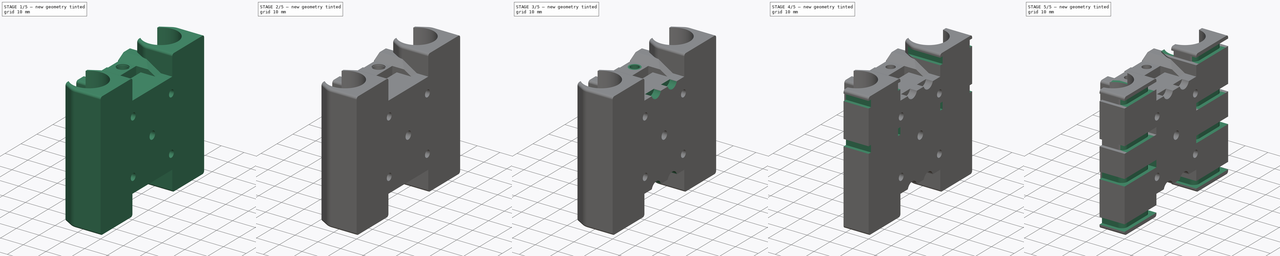
[diagram: build sequence overview — one tinted view per stage of 5, left to right]
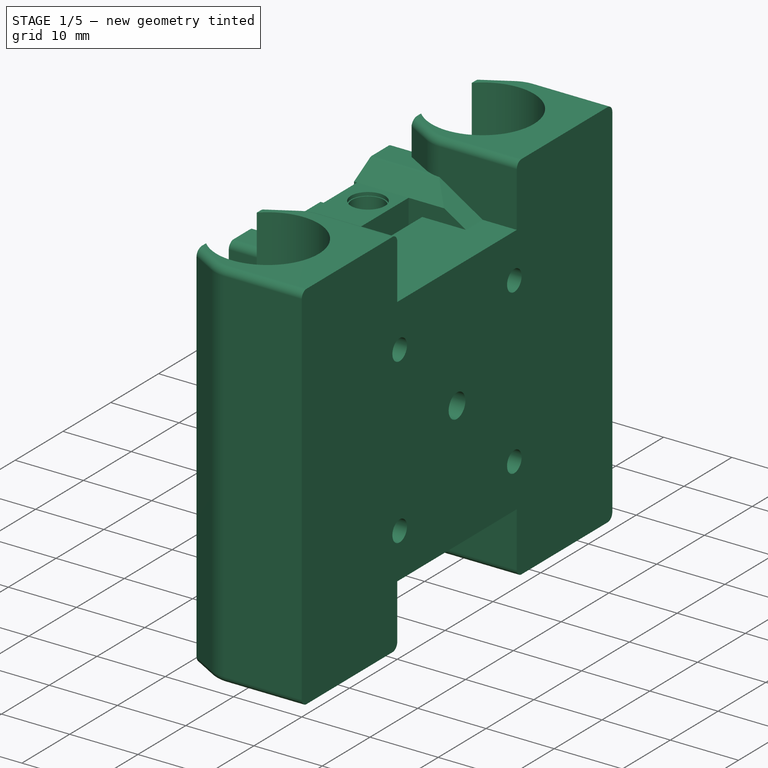
[diagram: stage 1 of 5 — iso view after this stage's code; geometry added in this stage tinted green]
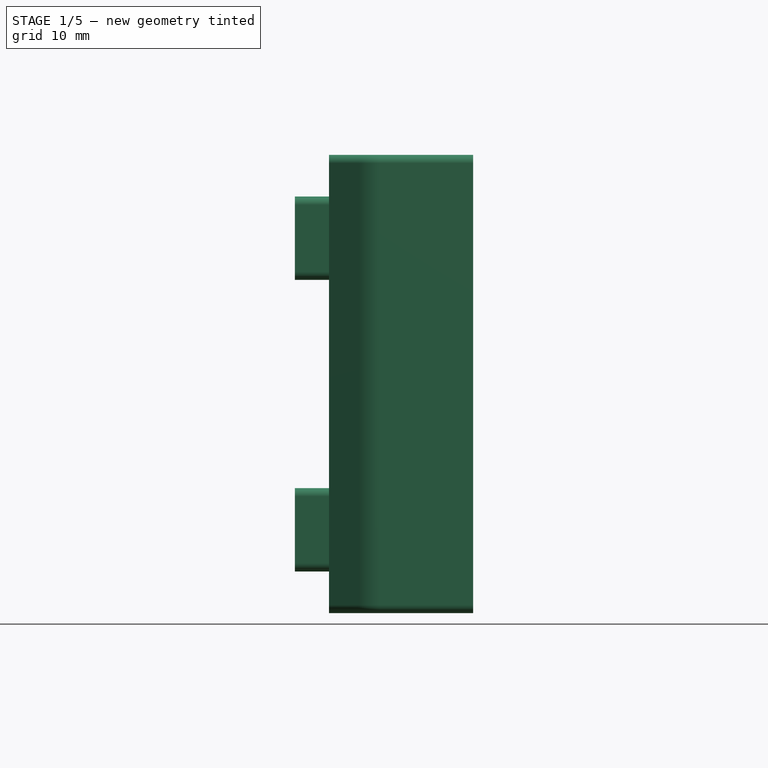
[diagram: stage 1 of 5 — front view after this stage's code; geometry added in this stage tinted green]
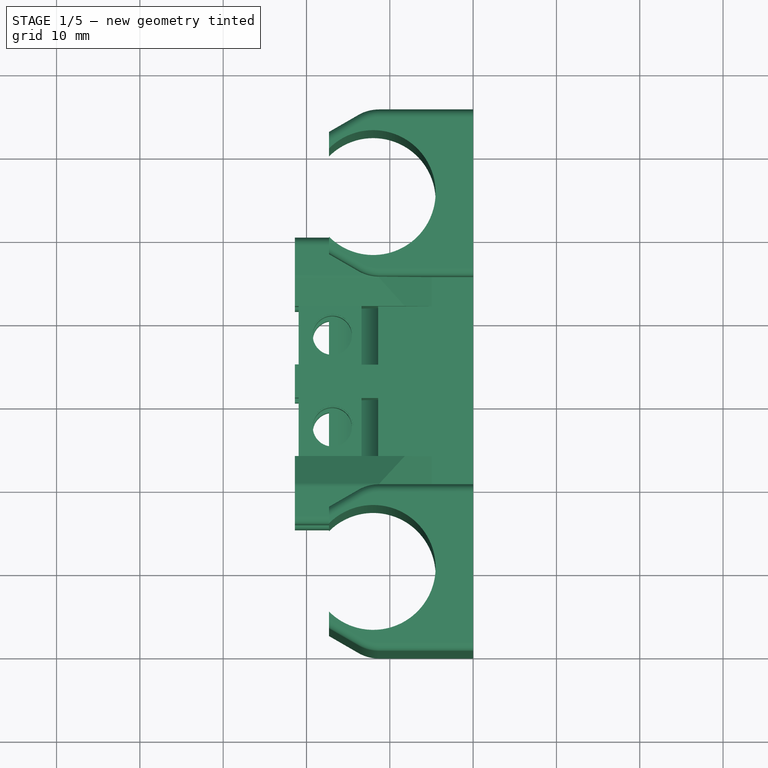
[diagram: stage 1 of 5 — top view after this stage's code; geometry added in this stage tinted green]
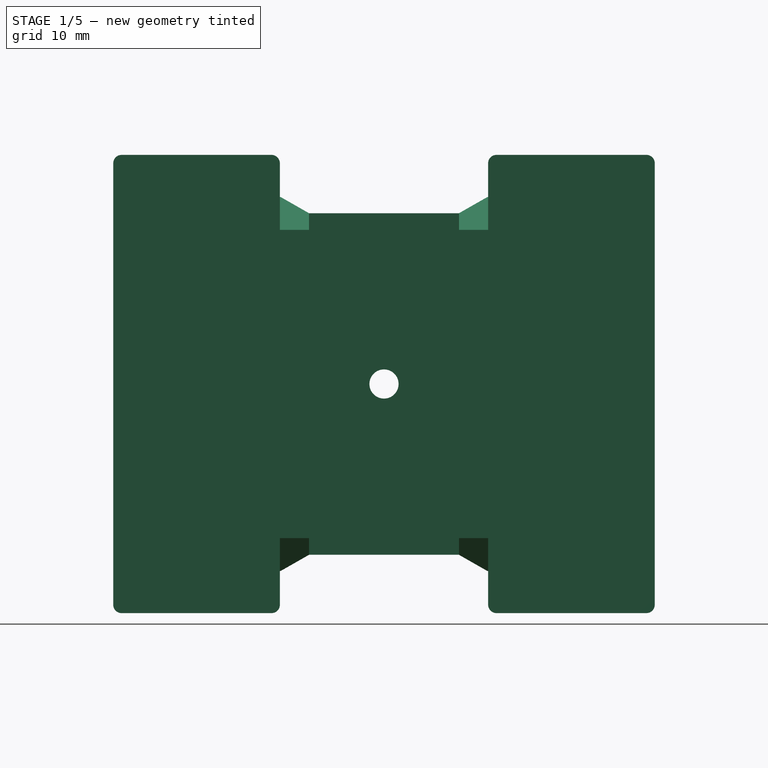
[diagram: stage 1 of 5 — right view after this stage's code; geometry added in this stage tinted green]
FCSTD DOCUMENT  (FreeCAD 0.17R13519 (Git))
Label: Corelia_0_X_carriage
License: All rights reserved
LicenseURL: http://en.wikipedia.org/wiki/All_rights_reserved
objects: Sketcher::SketchObject×21, PartDesign::Pocket×11, PartDesign::Pad×10, PartDesign::LinearPattern×2, Part::Feature×1, PartDesign::FeatureBase×1, PartDesign::Fillet×1, PartDesign::Body×1
note: 69 computed .brp shape members not serialized (recipe doc carries the construction recipe); baked Part::Feature solids carry a one-line shape summary decoded from their .brp

FEATURE [Part::Feature] Part__Feature  label="X Carriage"
  shape: bbox 21.4 x 65.82 x 55 mm, 269 faces (baked)
FEATURE [PartDesign::FeatureBase] BaseFeature
  BaseFeature = -> Part__Feature
FEATURE [Sketcher::SketchObject] Sketch
  ExternalGeometry = -> [BaseFeature]
  MapMode = 5
  Placement = pos=(-21.4,0,0) rot=(-0.57735,0.57735,0.57735;4.18879rad)
  Support = -> [BaseFeature]
  sketch-geometry (2):
    g0: Circle CenterX=-45 CenterY=45 CenterZ=0 NormalX=0 NormalY=0 NormalZ=1 AngleXU=0 Radius=2.5
    g1: Circle CenterX=-45 CenterY=45 CenterZ=0 NormalX=0 NormalY=0 NormalZ=1 AngleXU=0 Radius=1.85
  constraints (4):
    c: Coincident(g0,g-3)
    c: Coincident(g1,g0)
    c: Radius(g1) = 1.85
    c: Radius(g0) = 2.5
FEATURE [PartDesign::Pad] Pad
  BaseFeature = -> BaseFeature
  Length = 10
  Length2 = 100
  Profile = -> Sketch
  Type = 3
  UpToFace = -> BaseFeature [Face256]
FEATURE [Sketcher::SketchObject] Sketch001
  ExternalGeometry = -> [Pad]
  MapMode = 5
  Placement = pos=(-19.9,0,0) rot=(-0.57735,0.57735,0.57735;4.18879rad)
  Support = -> [Pad]
  sketch-geometry (2):
    g0: Circle CenterX=-32.5 CenterY=45 CenterZ=0 NormalX=0 NormalY=0 NormalZ=1 AngleXU=0 Radius=2.5
    g1: Circle CenterX=-32.5 CenterY=45 CenterZ=0 NormalX=0 NormalY=0 NormalZ=1 AngleXU=0 Radius=1.85
  constraints (4):
    c: Coincident(g0,g-3)
    c: Coincident(g1,g0)
    c: Radius(g0) = 2.5
    c: Radius(g1) = 1.85
FEATURE [PartDesign::Pad] Pad001
  BaseFeature = -> Pad
  Length = 10
  Length2 = 100
  Profile = -> Sketch001
  Type = 3
  UpToFace = -> Pad [Face259]
FEATURE [Sketcher::SketchObject] Sketch002
  ExternalGeometry = -> [Pad001]
  MapMode = 5
  Placement = pos=(-21.4,0,0) rot=(-0.57735,0.57735,0.57735;4.18879rad)
  Support = -> [Pad001]
  sketch-geometry (2):
    g0: Circle CenterX=-20 CenterY=45 CenterZ=0 NormalX=0 NormalY=0 NormalZ=1 AngleXU=0 Radius=1.85
    g1: Circle CenterX=-20 CenterY=45 CenterZ=0 NormalX=0 NormalY=0 NormalZ=1 AngleXU=0 Radius=2.5
  constraints (4):
    c: Coincident(g0,g-3)
    c: Coincident(g1,g0)
    c: Radius(g0) = 1.85
    c: Radius(g1) = 2.5
FEATURE [PartDesign::Pad] Pad002
  BaseFeature = -> Pad001
  Length = 10
  Length2 = 100
  Profile = -> Sketch002
  Type = 3
  UpToFace = -> Pad001 [Face258]
FEATURE [Sketcher::SketchObject] Sketch003
  ExternalGeometry = -> [Pad002]
  MapMode = 5
  Placement = pos=(-21.4,0,0) rot=(-0.57735,0.57735,0.57735;4.18879rad)
  Support = -> [Pad002]
  sketch-geometry (2):
    g0: Circle CenterX=-45 CenterY=10 CenterZ=0 NormalX=0 NormalY=0 NormalZ=1 AngleXU=0 Radius=2.5
    g1: Circle CenterX=-45 CenterY=10 CenterZ=0 NormalX=0 NormalY=0 NormalZ=1 AngleXU=0 Radius=1.85
  constraints (4):
    c: Coincident(g0,g-3)
    c: Coincident(g1,g0)
    c: Radius(g1) = 1.85
    c: Radius(g0) = 2.5
FEATURE [PartDesign::Pad] Pad003
  BaseFeature = -> Pad002
  Length = 10
  Length2 = 100
  Profile = -> Sketch003
  Type = 3
  UpToFace = -> Pad002 [Face234]
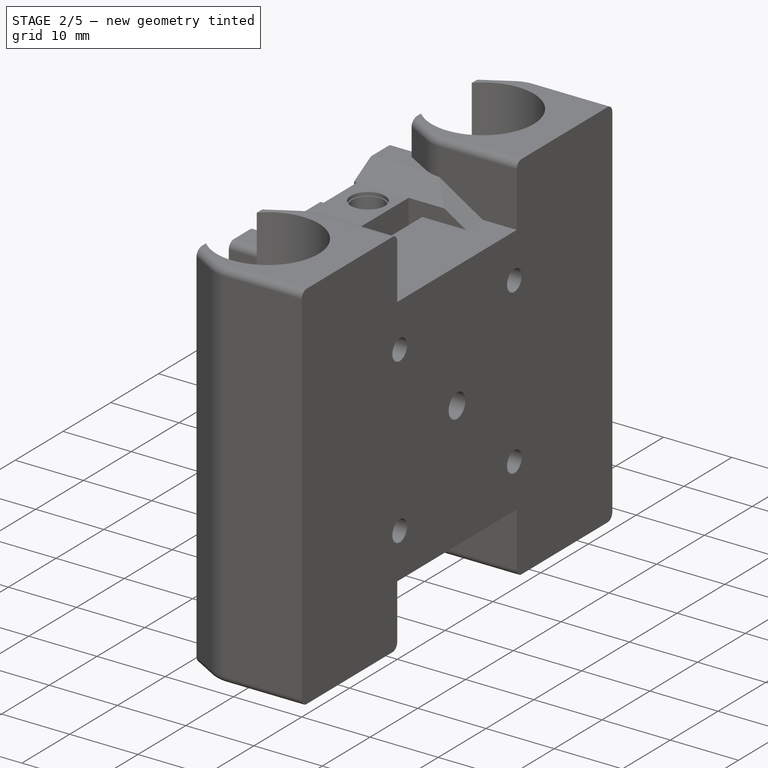
[diagram: stage 2 of 5 — iso view after this stage's code; geometry added in this stage tinted green]
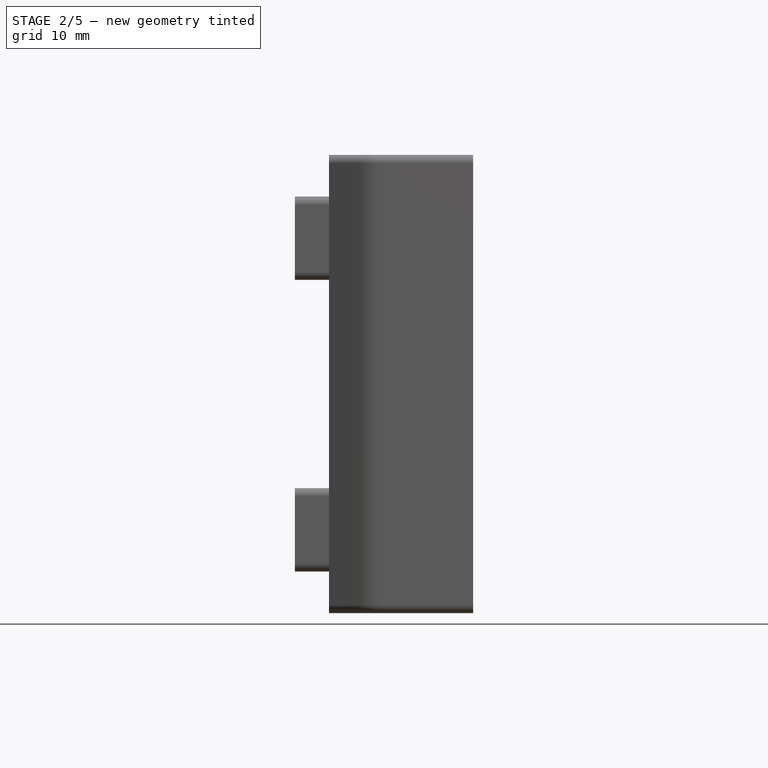
[diagram: stage 2 of 5 — front view after this stage's code; geometry added in this stage tinted green]
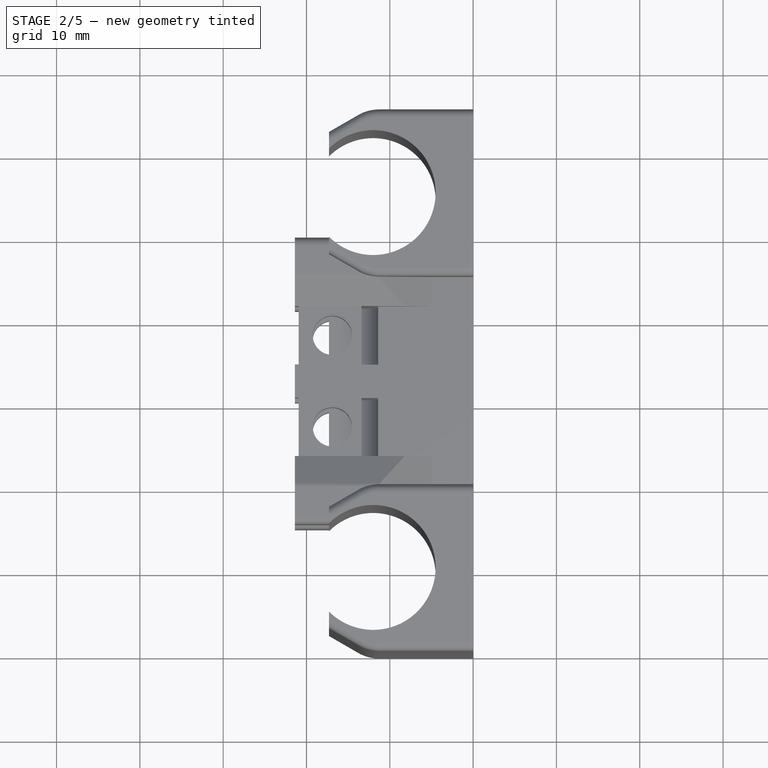
[diagram: stage 2 of 5 — top view after this stage's code; geometry added in this stage tinted green]
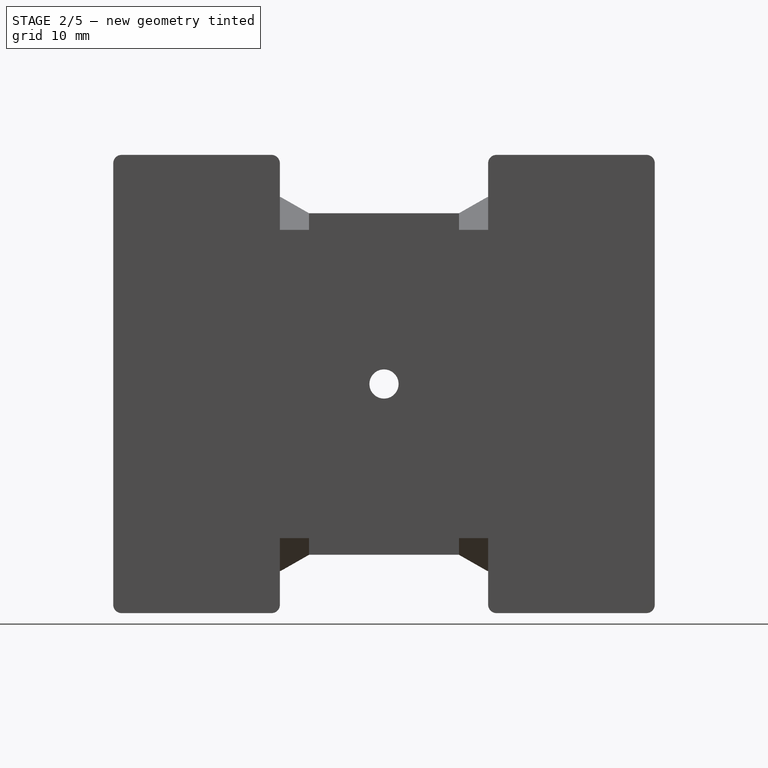
[diagram: stage 2 of 5 — right view after this stage's code; geometry added in this stage tinted green]
FEATURE [Sketcher::SketchObject] Sketch004
  ExternalGeometry = -> [Pad003]
  MapMode = 5
  Placement = pos=(-19.9,0,0) rot=(-0.57735,0.57735,0.57735;4.18879rad)
  Support = -> [Pad003]
  sketch-geometry (2):
    g0: Circle CenterX=-32.5 CenterY=10 CenterZ=0 NormalX=0 NormalY=0 NormalZ=1 AngleXU=0 Radius=1.85
    g1: Circle CenterX=-32.5 CenterY=10 CenterZ=0 NormalX=0 NormalY=0 NormalZ=1 AngleXU=0 Radius=2.35
  constraints (4):
    c: Coincident(g0,g-3)
    c: Coincident(g1,g0)
    c: Radius(g0) = 1.85
    c: Radius(g1) = 2.35
FEATURE [PartDesign::Pad] Pad004
  BaseFeature = -> Pad003
  Length = 10
  Length2 = 100
  Profile = -> Sketch004
  Type = 3
  UpToFace = -> Pad003 [Face250]
FEATURE [Sketcher::SketchObject] Sketch006
  ExternalGeometry = -> [Pad004]
  MapMode = 5
  Placement = pos=(-21.4,0,0) rot=(-0.57735,0.57735,0.57735;4.18879rad)
  Support = -> [Pad004]
  sketch-geometry (2):
    g0: Circle CenterX=-20 CenterY=10 CenterZ=0 NormalX=0 NormalY=0 NormalZ=1 AngleXU=0 Radius=1.85
    g1: Circle CenterX=-20 CenterY=10 CenterZ=0 NormalX=0 NormalY=0 NormalZ=1 AngleXU=0 Radius=2.5
  constraints (4):
    c: Coincident(g0,g-3)
    c: Coincident(g1,g0)
    c: Radius(g0) = 1.85
    c: Radius(g1) = 2.5
FEATURE [PartDesign::Pad] Pad005
  BaseFeature = -> Pad004
  Length = 10
  Length2 = 100
  Profile = -> Sketch006
  Type = 3
  UpToFace = -> Pad004 [Face256]
FEATURE [Sketcher::SketchObject] Sketch007
  ExternalGeometry = -> [Pad005]
  MapMode = 5
  Placement = pos=(-21.4,0,0) rot=(0.57735,-0.57735,-0.57735;2.0944rad)
  Support = -> [Pad005]
  sketch-geometry (1):
    g0: Circle CenterX=-45 CenterY=45 CenterZ=0 NormalX=0 NormalY=0 NormalZ=1 AngleXU=0 Radius=2
  constraints (2):
    c: Coincident(g0,g-3)
    c: Radius(g0) = 2
FEATURE [PartDesign::Pocket] Pocket
  BaseFeature = -> Pad005
  Length = 0.5
  Length2 = 100
  Profile = -> Sketch007
  Type = 0
FEATURE [Sketcher::SketchObject] Sketch008
  ExternalGeometry = -> [Pocket]
  MapMode = 5
  Placement = pos=(-21.4,0,0) rot=(-0.57735,0.57735,0.57735;4.18879rad)
  Support = -> [Pocket]
  sketch-geometry (1):
    g0: Circle CenterX=-20 CenterY=45 CenterZ=0 NormalX=0 NormalY=0 NormalZ=1 AngleXU=0 Radius=2
  constraints (2):
    c: Coincident(g0,g-3)
    c: Radius(g0) = 2
FEATURE [PartDesign::Pocket] Pocket001
  BaseFeature = -> Pocket
  Length = 0.5
  Length2 = 100
  Profile = -> Sketch008
  Type = 0
FEATURE [Sketcher::SketchObject] Sketch009
  ExternalGeometry = -> [Pocket001]
  MapMode = 5
  Placement = pos=(-21.4,0,0) rot=(0.57735,-0.57735,-0.57735;2.0944rad)
  Support = -> [Pocket001]
  sketch-geometry (1):
    g0: Circle CenterX=-45 CenterY=10 CenterZ=0 NormalX=0 NormalY=0 NormalZ=1 AngleXU=0 Radius=2
  constraints (2):
    c: Coincident(g0,g-3)
    c: Radius(g0) = 2
FEATURE [PartDesign::Pocket] Pocket002
  BaseFeature = -> Pocket001
  Length = 0.5
  Length2 = 100
  Profile = -> Sketch009
  Type = 0
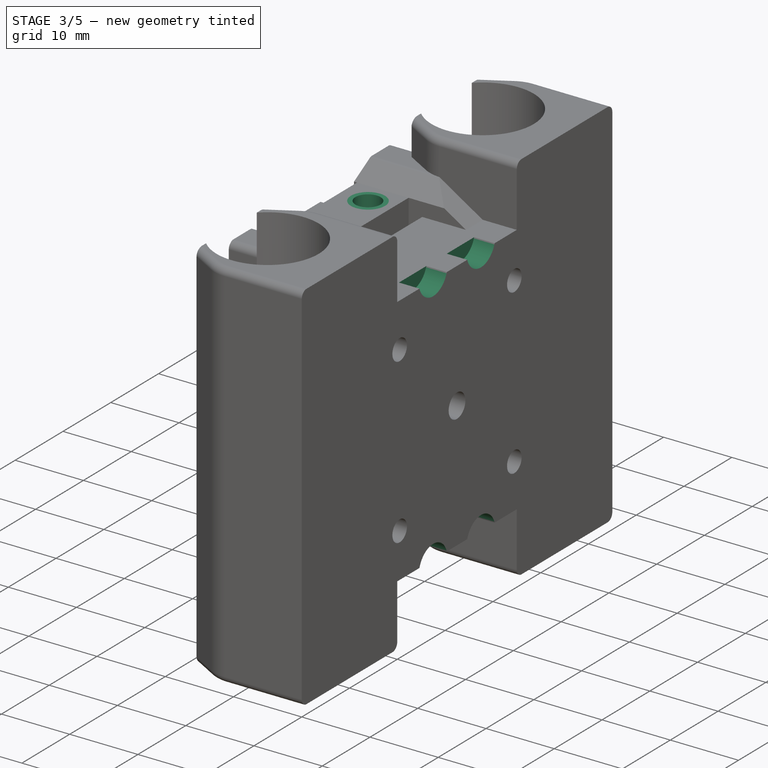
[diagram: stage 3 of 5 — iso view after this stage's code; geometry added in this stage tinted green]
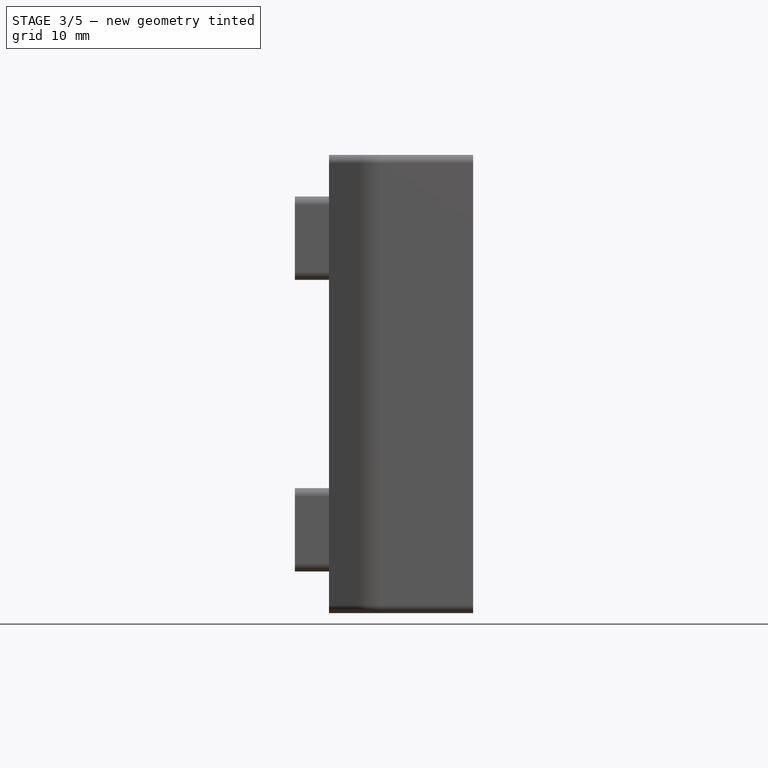
[diagram: stage 3 of 5 — front view after this stage's code; geometry added in this stage tinted green]
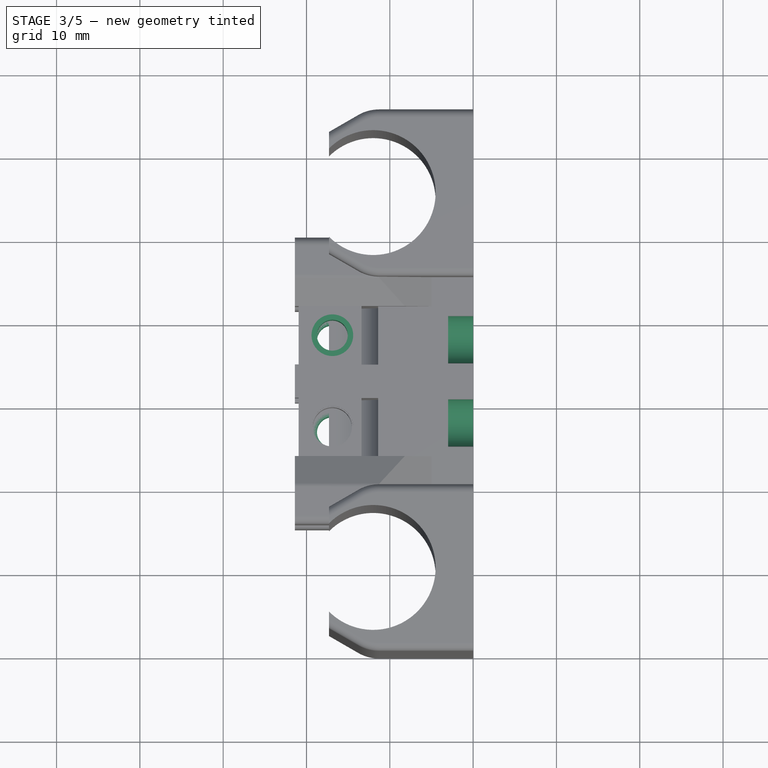
[diagram: stage 3 of 5 — top view after this stage's code; geometry added in this stage tinted green]
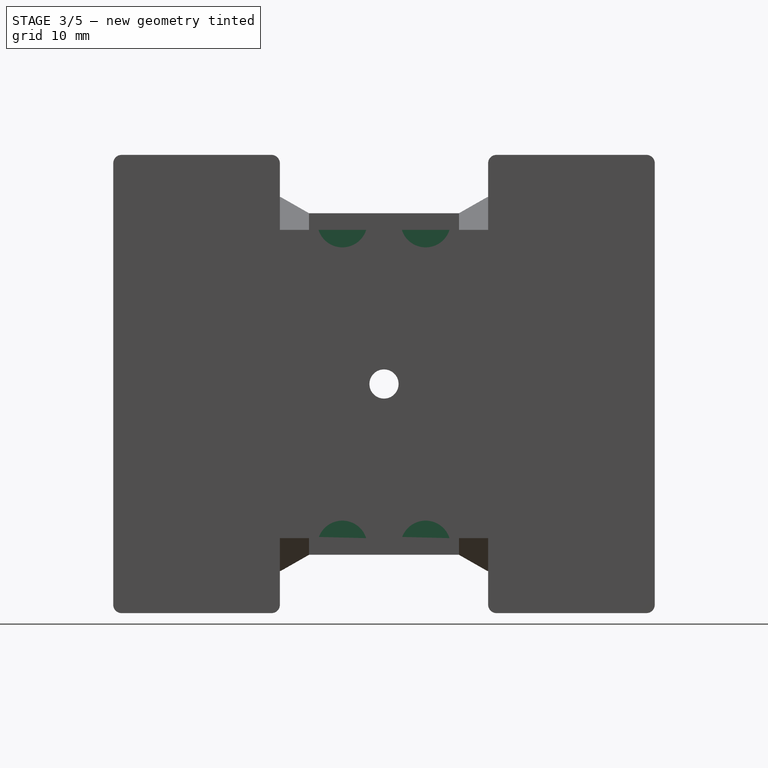
[diagram: stage 3 of 5 — right view after this stage's code; geometry added in this stage tinted green]
FEATURE [Sketcher::SketchObject] Sketch010
  ExternalGeometry = -> [Pocket002]
  MapMode = 5
  Placement = pos=(-21.4,0,0) rot=(-0.57735,0.57735,0.57735;4.18879rad)
  Support = -> [Pocket002]
  sketch-geometry (1):
    g0: Circle CenterX=-20 CenterY=10 CenterZ=0 NormalX=0 NormalY=0 NormalZ=1 AngleXU=0 Radius=2
  constraints (2):
    c: Coincident(g0,g-3)
    c: Radius(g0) = 2
FEATURE [PartDesign::Pocket] Pocket003
  BaseFeature = -> Pocket002
  Length = 0.5
  Length2 = 100
  Profile = -> Sketch010
  Type = 0
FEATURE [Sketcher::SketchObject] Sketch011
  MapMode = 5
  Placement = pos=(0,0,0) rot=(0.57735,0.57735,0.57735;2.0944rad)
  Support = -> [Pocket003]
  sketch-geometry (8):
    g0: LineSegment [constr] StartX=27.5 StartY=46.9 StartZ=0 EndX=37.5 EndY=46.9 EndZ=0
    g1: LineSegment [constr] StartX=37.5 StartY=46.9 StartZ=0 EndX=37.5 EndY=8.1 EndZ=0
    g2: LineSegment [constr] StartX=37.5 StartY=8.1 StartZ=0 EndX=27.5 EndY=8.1 EndZ=0
    g3: LineSegment [constr] StartX=27.5 StartY=8.1 StartZ=0 EndX=27.5 EndY=46.9 EndZ=0
    g4: Circle CenterX=27.5 CenterY=46.9 CenterZ=0 NormalX=0 NormalY=0 NormalZ=1 AngleXU=0 Radius=3
    g5: Circle CenterX=37.5 CenterY=46.9 CenterZ=0 NormalX=0 NormalY=0 NormalZ=1 AngleXU=0 Radius=3
    g6: Circle CenterX=27.5 CenterY=8.1 CenterZ=0 NormalX=0 NormalY=0 NormalZ=1 AngleXU=0 Radius=3
    g7: Circle CenterX=37.5 CenterY=8.1 CenterZ=0 NormalX=0 NormalY=0 NormalZ=1 AngleXU=0 Radius=3
  constraints (20):
    c: Coincident(g0,g1)
    c: Coincident(g1,g2)
    c: Coincident(g2,g3)
    c: Coincident(g3,g0)
    c: Horizontal(g0)
    c: Horizontal(g2)
    c: Vertical(g1)
    c: Vertical(g3)
    c: Coincident(g4,g0)
    c: Coincident(g5,g0)
    c: Coincident(g6,g2)
    c: Coincident(g7,g1)
    c: Equal(g6,g4)
    c: Equal(g4,g5)
    c: Equal(g5,g7)
    c: Radius(g4) = 3
    c: DistanceX(g2) = 27.5
    c: DistanceY(g2) = 8.1
    c: DistanceX(g2,g2) = 10
    c: DistanceY(g1,g1) = 38.8
FEATURE [PartDesign::Pocket] Pocket004
  BaseFeature = -> Pocket003
  Length = 3
  Length2 = 100
  Profile = -> Sketch011
  Type = 0
FEATURE [Sketcher::SketchObject] Sketch012
  ExternalGeometry = -> [Pocket004]
  MapMode = 5
  Placement = pos=(0,0,7) rot=(1,0,0;3.14159rad)
  Support = -> [Pocket004]
  sketch-geometry (2):
    g0: Circle CenterX=-16.9 CenterY=-27 CenterZ=0 NormalX=0 NormalY=0 NormalZ=1 AngleXU=0 Radius=2.5
    g1: Circle CenterX=-16.9 CenterY=-27 CenterZ=0 NormalX=0 NormalY=0 NormalZ=1 AngleXU=0 Radius=1.85
  constraints (4):
    c: Coincident(g0,g-3)
    c: Radius(g0) = 2.5
    c: Coincident(g1,g0)
    c: Radius(g1) = 1.85
FEATURE [PartDesign::Pad] Pad006
  BaseFeature = -> Pocket004
  Length = 10
  Length2 = 100
  Profile = -> Sketch012
  Type = 3
  UpToFace = -> Pocket004 [Face32]
FEATURE [Sketcher::SketchObject] Sketch013
  ExternalGeometry = -> [Pad006]
  MapMode = 5
  Placement = pos=(0,0,7) rot=(1,0,0;3.14159rad)
  Support = -> [Pad006]
  sketch-geometry (2):
    g0: Circle CenterX=-16.9 CenterY=-38 CenterZ=0 NormalX=0 NormalY=0 NormalZ=1 AngleXU=0 Radius=1.85
    g1: Circle CenterX=-16.9 CenterY=-38 CenterZ=0 NormalX=0 NormalY=0 NormalZ=1 AngleXU=0 Radius=2.5
  constraints (4):
    c: Coincident(g1,g0)
    c: Coincident(g-3,g0)
    c: Radius(g0) = 1.85
    c: Radius(g1) = 2.5
FEATURE [PartDesign::Pad] Pad007
  BaseFeature = -> Pad006
  Length = 10
  Length2 = 100
  Profile = -> Sketch013
  Type = 3
  UpToFace = -> Pad006 [Face32]
FEATURE [Sketcher::SketchObject] Sketch014
  ExternalGeometry = -> [Pad007]
  MapMode = 5
  Placement = pos=(0,0,48) rot=(0,0,1;0rad)
  Support = -> [Pad007]
  sketch-geometry (2):
    g0: Circle CenterX=-16.9 CenterY=38 CenterZ=0 NormalX=0 NormalY=0 NormalZ=1 AngleXU=0 Radius=2.5
    g1: Circle CenterX=-16.9 CenterY=38 CenterZ=0 NormalX=0 NormalY=0 NormalZ=1 AngleXU=0 Radius=1.85
  constraints (4):
    c: Coincident(g0,g-3)
    c: Coincident(g1,g0)
    c: Radius(g0) = 2.5
    c: Radius(g1) = 1.85
FEATURE [PartDesign::Pad] Pad008
  BaseFeature = -> Pad007
  Length = 10
  Length2 = 100
  Profile = -> Sketch014
  Type = 3
  UpToFace = -> Pad007 [Face48]
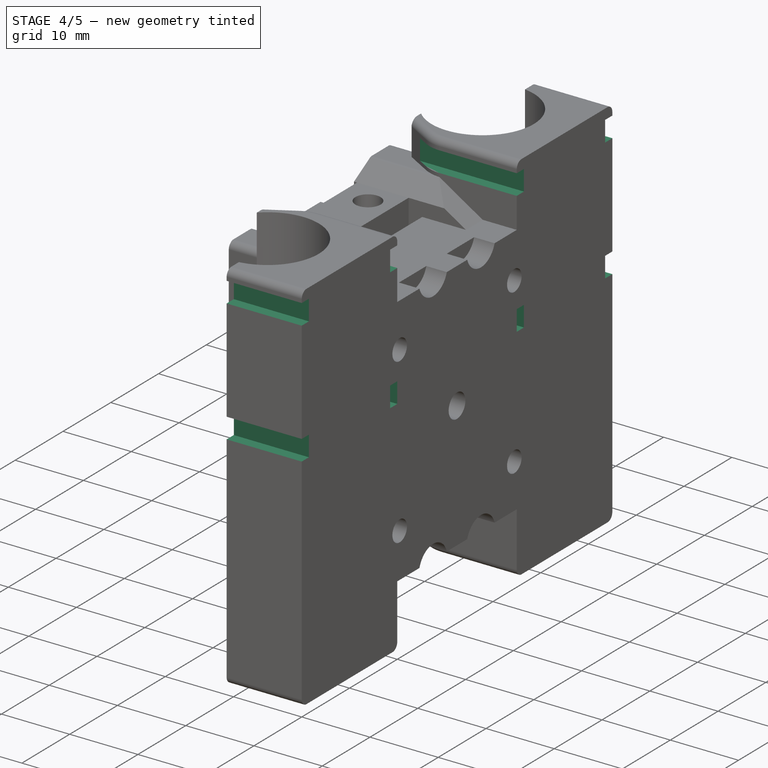
[diagram: stage 4 of 5 — iso view after this stage's code; geometry added in this stage tinted green]
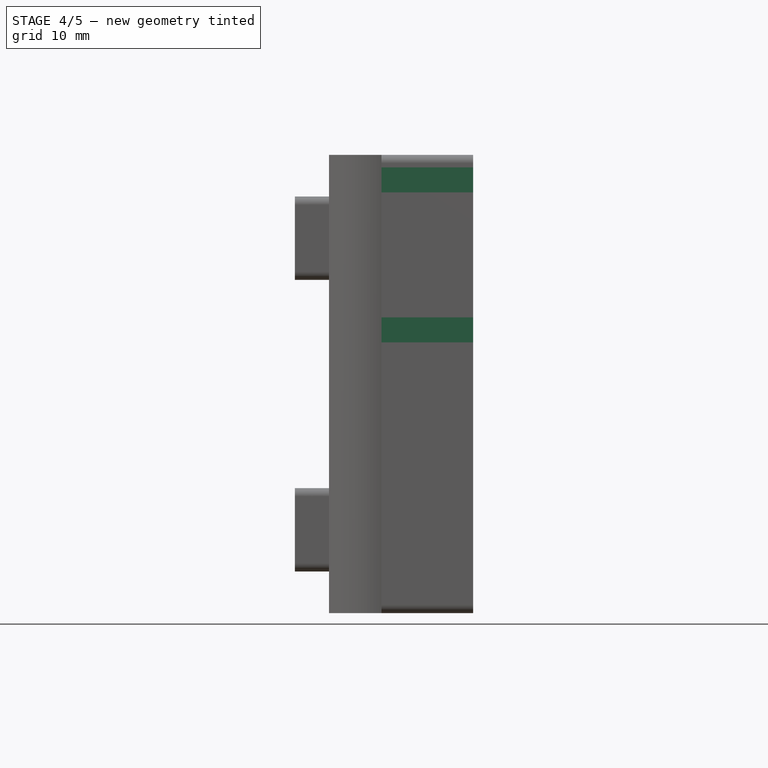
[diagram: stage 4 of 5 — front view after this stage's code; geometry added in this stage tinted green]
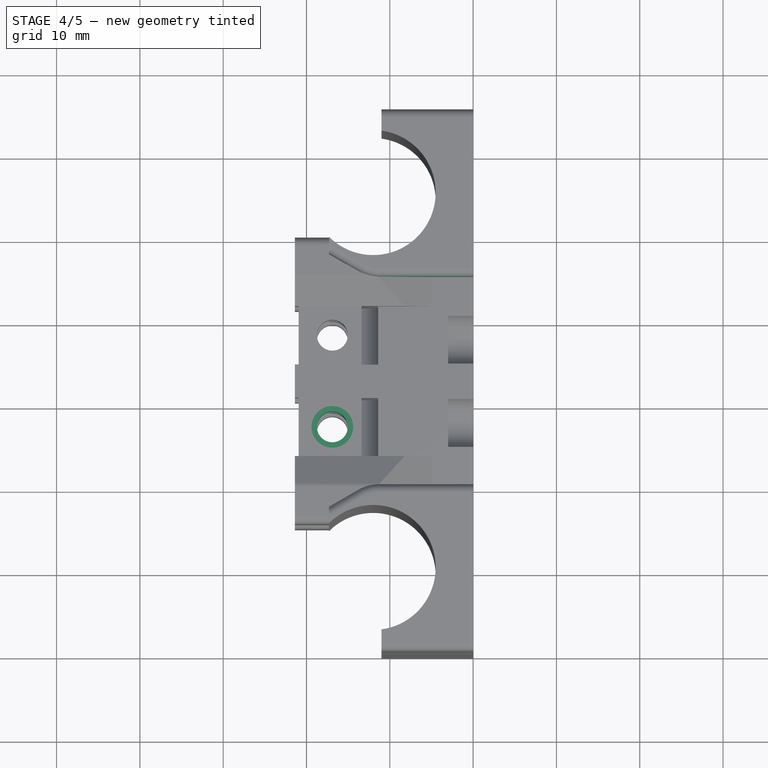
[diagram: stage 4 of 5 — top view after this stage's code; geometry added in this stage tinted green]
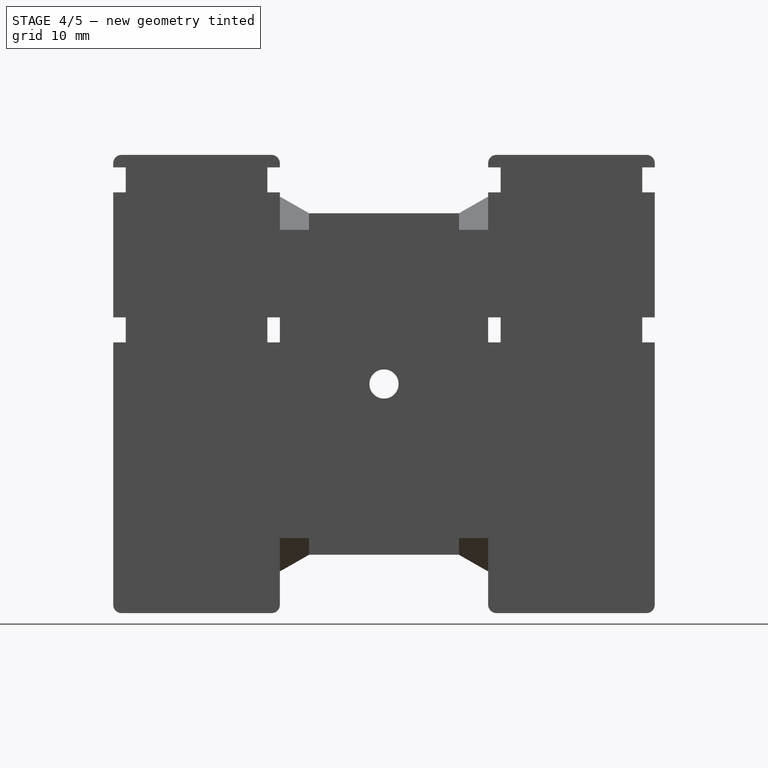
[diagram: stage 4 of 5 — right view after this stage's code; geometry added in this stage tinted green]
FEATURE [Sketcher::SketchObject] Sketch015
  ExternalGeometry = -> [Pad008]
  MapMode = 5
  Placement = pos=(0,0,48) rot=(0,0,1;0rad)
  Support = -> [Pad008]
  sketch-geometry (2):
    g0: Circle CenterX=-16.9 CenterY=27 CenterZ=0 NormalX=0 NormalY=0 NormalZ=1 AngleXU=0 Radius=2.5
    g1: Circle CenterX=-16.9 CenterY=27 CenterZ=0 NormalX=0 NormalY=0 NormalZ=1 AngleXU=0 Radius=1.85
  constraints (4):
    c: Coincident(g0,g-3)
    c: Coincident(g1,g0)
    c: Radius(g1) = 1.85
    c: Radius(g0) = 2.5
FEATURE [PartDesign::Pad] Pad009
  BaseFeature = -> Pad008
  Length = 10
  Length2 = 100
  Profile = -> Sketch015
  Type = 3
  UpToFace = -> Pad008 [Face48]
FEATURE [Sketcher::SketchObject] Sketch016
  ExternalGeometry = -> [Pad009]
  MapMode = 5
  Placement = pos=(0,0,42) rot=(1,0,0;3.14159rad)
  Support = -> [Pad009]
  sketch-geometry (2):
    g0: Circle CenterX=-16.9 CenterY=-27 CenterZ=0 NormalX=0 NormalY=0 NormalZ=1 AngleXU=0 Radius=2
    g1: Circle CenterX=-16.9 CenterY=-38 CenterZ=0 NormalX=0 NormalY=0 NormalZ=1 AngleXU=0 Radius=2
  constraints (4):
    c: Coincident(g0,g-4)
    c: Coincident(g1,g-3)
    c: Equal(g0,g1)
    c: Radius(g0) = 2
FEATURE [PartDesign::Pocket] Pocket005
  BaseFeature = -> Pad009
  Length = 0.5
  Length2 = 29.5
  Profile = -> Sketch016
  Type = 4
FEATURE [Sketcher::SketchObject] Sketch017
  MapMode = 5
  Placement = pos=(0,0,0) rot=(1,0,0;3.14159rad)
  Support = -> [Pocket005]
  sketch-geometry (8):
    g0: LineSegment StartX=-11 StartY=-10 StartZ=0 EndX=-22 EndY=-10 EndZ=0
    g1: LineSegment StartX=-22 StartY=-10 StartZ=0 EndX=-22 EndY=1 EndZ=0
    g2: LineSegment StartX=-22 StartY=1 StartZ=0 EndX=-11 EndY=1 EndZ=0
    g3: LineSegment StartX=-11 StartY=1 StartZ=0 EndX=-11 EndY=-10 EndZ=0
    g4: LineSegment StartX=-11 StartY=-55 StartZ=0 EndX=-22 EndY=-55 EndZ=0
    g5: LineSegment StartX=-22 StartY=-55 StartZ=0 EndX=-22 EndY=-66 EndZ=0
    g6: LineSegment StartX=-22 StartY=-66 StartZ=0 EndX=-11 EndY=-66 EndZ=0
    g7: LineSegment StartX=-11 StartY=-66 StartZ=0 EndX=-11 EndY=-55 EndZ=0
  constraints (24):
    c: Coincident(g0,g1)
    c: Coincident(g1,g2)
    c: Coincident(g2,g3)
    c: Coincident(g3,g0)
    c: Horizontal(g0)
    c: Horizontal(g2)
    c: Vertical(g1)
    c: Vertical(g3)
    c: Coincident(g4,g5)
    c: Coincident(g5,g6)
    c: Coincident(g6,g7)
    c: Coincident(g7,g4)
    c: Horizontal(g4)
    c: Horizontal(g6)
    c: Vertical(g5)
    c: Vertical(g7)
    c: Equal(g3,g0)
    c: Equal(g0,g4)
    c: Equal(g4,g7)
    c: DistanceX(g2,g2) = 11
    c: DistanceX(g0) = -11
    c: DistanceY(g0) = -10
    c: DistanceX(g4) = -11
    c: DistanceY(g4) = -55
FEATURE [PartDesign::Pocket] Pocket006
  BaseFeature = -> Pocket005
  Length = 5
  Length2 = 100
  Profile = -> Sketch017
  Type = 1
FEATURE [Sketcher::SketchObject] Sketch018
  MapMode = 5
  Placement = pos=(0,0,0) rot=(1,0,0;3.14159rad)
  Support = -> [Pocket006]
  sketch-geometry (2):
    g0: Circle CenterX=-12 CenterY=-10 CenterZ=0 NormalX=0 NormalY=0 NormalZ=1 AngleXU=0 Radius=7.5
    g1: Circle CenterX=-12 CenterY=-55 CenterZ=0 NormalX=0 NormalY=0 NormalZ=1 AngleXU=0 Radius=7.5
  constraints (6):
    c: DistanceX(g0) = -12
    c: DistanceY(g0) = -10
    c: Radius(g0) = 7.5
    c: DistanceX(g1) = -12
    c: DistanceY(g1) = -55
    c: Equal(g0,g1)
FEATURE [PartDesign::Pocket] Pocket007
  BaseFeature = -> Pocket006
  Length = 5
  Length2 = 100
  Profile = -> Sketch018
  Type = 1
FEATURE [Sketcher::SketchObject] Sketch019
  MapMode = 5
  Placement = pos=(-17.2998,0,0) rot=(0.57735,-0.57735,-0.57735;2.0944rad)
  Support = -> [Pocket007]
  sketch-geometry (34):
    g0: LineSegment StartX=-20 StartY=53.5 StartZ=0 EndX=-18.5 EndY=53.5 EndZ=0
    g1: LineSegment StartX=-18.5 StartY=53.5 StartZ=0 EndX=-18.5 EndY=50.5 EndZ=0
    g2: LineSegment StartX=-18.5 StartY=50.5 StartZ=0 EndX=-20 EndY=50.5 EndZ=0
    g3: LineSegment StartX=-20 StartY=50.5 StartZ=0 EndX=-20 EndY=53.5 EndZ=0
    g4: LineSegment StartX=-46.5 StartY=53.5 StartZ=0 EndX=-45 EndY=53.5 EndZ=0
    g5: LineSegment StartX=-45 StartY=53.5 StartZ=0 EndX=-45 EndY=50.5 EndZ=0
    g6: LineSegment StartX=-45 StartY=50.5 StartZ=0 EndX=-46.5 EndY=50.5 EndZ=0
    g7: LineSegment StartX=-46.5 StartY=50.5 StartZ=0 EndX=-46.5 EndY=53.5 EndZ=0
    g8: LineSegment StartX=-65 StartY=53.5 StartZ=0 EndX=-63.5 EndY=53.5 EndZ=0
    g9: LineSegment StartX=-63.5 StartY=53.5 StartZ=0 EndX=-63.5 EndY=50.5 EndZ=0
    g10: LineSegment StartX=-63.5 StartY=50.5 StartZ=0 EndX=-65 EndY=50.5 EndZ=0
    g11: LineSegment StartX=-65 StartY=50.5 StartZ=0 EndX=-65 EndY=53.5 EndZ=0
    g12: LineSegment StartX=-1.5 StartY=53.5 StartZ=0 EndX=0 EndY=53.5 EndZ=0
    g13: LineSegment StartX=0 StartY=53.5 StartZ=0 EndX=0 EndY=50.5 EndZ=0
    g14: LineSegment StartX=0 StartY=50.5 StartZ=0 EndX=-1.5 EndY=50.5 EndZ=0
    g15: LineSegment StartX=-1.5 StartY=50.5 StartZ=0 EndX=-1.5 EndY=53.5 EndZ=0
    g16: LineSegment [constr] StartX=-65 StartY=0 StartZ=0 EndX=-65 EndY=55 EndZ=0
    g17: LineSegment [constr] StartX=0 StartY=55 StartZ=0 EndX=-65 EndY=55 EndZ=0
    g18: LineSegment StartX=-65 StartY=35.5 StartZ=0 EndX=-63.5 EndY=35.5 EndZ=0
    g19: LineSegment StartX=-63.5 StartY=35.5 StartZ=0 EndX=-63.5 EndY=32.5 EndZ=0
    g20: LineSegment StartX=-63.5 StartY=32.5 StartZ=0 EndX=-65 EndY=32.5 EndZ=0
    g21: LineSegment StartX=-65 StartY=32.5 StartZ=0 EndX=-65 EndY=35.5 EndZ=0
    g22: LineSegment StartX=-46.5 StartY=35.5 StartZ=0 EndX=-45 EndY=35.5 EndZ=0
    g23: LineSegment StartX=-45 StartY=35.5 StartZ=0 EndX=-45 EndY=32.5 EndZ=0
    g24: LineSegment StartX=-45 StartY=32.5 StartZ=0 EndX=-46.5 EndY=32.5 EndZ=0
    g25: LineSegment StartX=-46.5 StartY=32.5 StartZ=0 EndX=-46.5 EndY=35.5 EndZ=0
    g26: LineSegment StartX=-20 StartY=35.5 StartZ=0 EndX=-18.5 EndY=35.5 EndZ=0
    g27: LineSegment StartX=-18.5 StartY=35.5 StartZ=0 EndX=-18.5 EndY=32.5 EndZ=0
    g28: LineSegment StartX=-18.5 StartY=32.5 StartZ=0 EndX=-20 EndY=32.5 EndZ=0
    g29: LineSegment StartX=-20 StartY=32.5 StartZ=0 EndX=-20 EndY=35.5 EndZ=0
    g30: LineSegment StartX=-1.5 StartY=35.5 StartZ=0 EndX=0 EndY=35.5 EndZ=0
    g31: LineSegment StartX=0 StartY=35.5 StartZ=0 EndX=0 EndY=32.5 EndZ=0
    g32: LineSegment StartX=0 StartY=32.5 StartZ=0 EndX=-1.5 EndY=32.5 EndZ=0
    g33: LineSegment StartX=-1.5 StartY=32.5 StartZ=0 EndX=-1.5 EndY=35.5 EndZ=0
  constraints (103):
    c: Coincident(g0,g1)
    c: Coincident(g1,g2)
    c: Coincident(g2,g3)
    c: Coincident(g3,g0)
    c: Horizontal(g0)
    c: Horizontal(g2)
    c: Vertical(g1)
    c: Vertical(g3)
    c: Coincident(g4,g5)
    c: Coincident(g5,g6)
    c: Coincident(g6,g7)
    c: Coincident(g7,g4)
    c: Horizontal(g4)
    c: Horizontal(g6)
    c: Vertical(g5)
    c: Vertical(g7)
    c: Coincident(g8,g9)
    c: Coincident(g9,g10)
    c: Coincident(g10,g11)
    c: Coincident(g11,g8)
    c: Horizontal(g8)
    c: Horizontal(g10)
    c: Vertical(g9)
    c: Vertical(g11)
    c: Coincident(g12,g13)
    c: Coincident(g13,g14)
    c: Coincident(g14,g15)
    c: Coincident(g15,g12)
    c: Horizontal(g12)
    c: Horizontal(g14)
    c: Vertical(g13)
    c: Vertical(g15)
    c: Vertical(g16)
    c: Horizontal(g17)
    c: PointOnObject(g16,g-1)
    c: PointOnObject(g17,g-2)
    c: Coincident(g16,g17)
    c: DistanceX(g17,g17) = 65
    c: DistanceY(g16,g16) = 55
    c: DistanceX(g8,g8) = 1.5
    c: DistanceY(g11,g11) = 3
    c: Equal(g8,g4)
    c: Equal(g4,g0)
    c: Equal(g0,g12)
    c: Equal(g11,g7)
    c: Equal(g7,g3)
    c: Equal(g3,g15)
    c: DistanceY(g8,g16) = 1.5
    c: DistanceX(g8,g4) = 17
    c: DistanceX(g8) = -65
    c: DistanceX(g0,g12) = 17
    c: PointOnObject(g13,g-2)
    c: PointOnObject(g4,g8)
    c: PointOnObject(g0,g4)
    c: PointOnObject(g12,g0)
    c: Coincident(g18,g19)
    c: Coincident(g19,g20)
    c: Coincident(g20,g21)
    c: Coincident(g21,g18)
    c: Horizontal(g18)
    c: Horizontal(g20)
    c: Vertical(g19)
    c: Vertical(g21)
    c: PointOnObject(g18,g16)
    c: Coincident(g22,g23)
    c: Coincident(g23,g24)
    c: Coincident(g24,g25)
    c: Coincident(g25,g22)
    c: Horizontal(g22)
    c: Horizontal(g24)
    c: Vertical(g23)
    c: Vertical(g25)
    c: Coincident(g26,g27)
    c: Coincident(g27,g28)
    c: Coincident(g28,g29)
    c: Coincident(g29,g26)
    c: Horizontal(g26)
    c: Horizontal(g28)
    c: Vertical(g27)
    c: Vertical(g29)
    c: Coincident(g30,g31)
    c: Coincident(g31,g32)
    c: Coincident(g32,g33)
    c: Coincident(g33,g30)
    c: Horizontal(g30)
    c: Horizontal(g32)
    c: Vertical(g31)
    c: Vertical(g33)
    c: Equal(g11,g21)
    c: Equal(g21,g25)
    c: Equal(g25,g29)
    c: Equal(g29,g33)
    c: Equal(g8,g18)
    c: Equal(g18,g22)
    c: Equal(g22,g26)
    c: Equal(g26,g30)
    c: PointOnObject(g24,g20)
    c: PointOnObject(g28,g24)
    c: PointOnObject(g32,g28)
    c: PointOnObject(g22,g5)
    c: PointOnObject(g26,g3)
    c: PointOnObject(g30,g13)
    c: DistanceY(g20,g8) = 21
FEATURE [PartDesign::Pocket] Pocket008
  BaseFeature = -> Pocket007
  Length = 5
  Length2 = 100
  Profile = -> Sketch019
  Type = 1
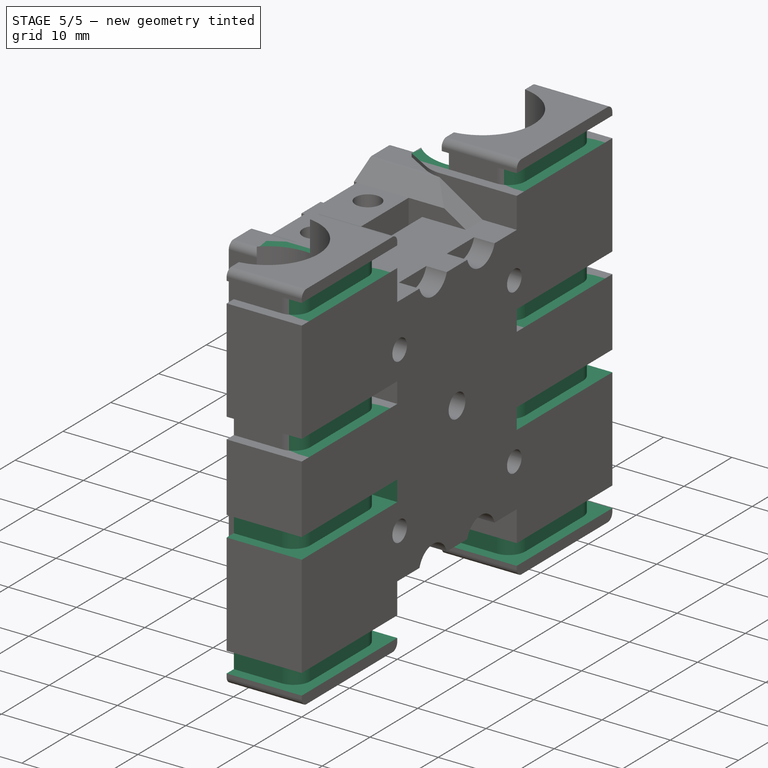
[diagram: stage 5 of 5 — iso view after this stage's code; geometry added in this stage tinted green]
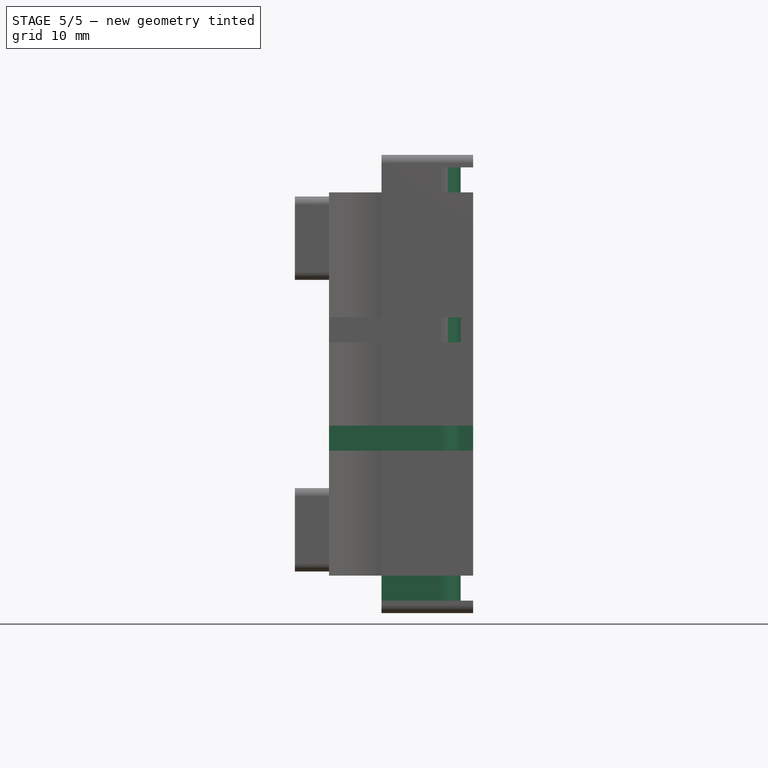
[diagram: stage 5 of 5 — front view after this stage's code; geometry added in this stage tinted green]
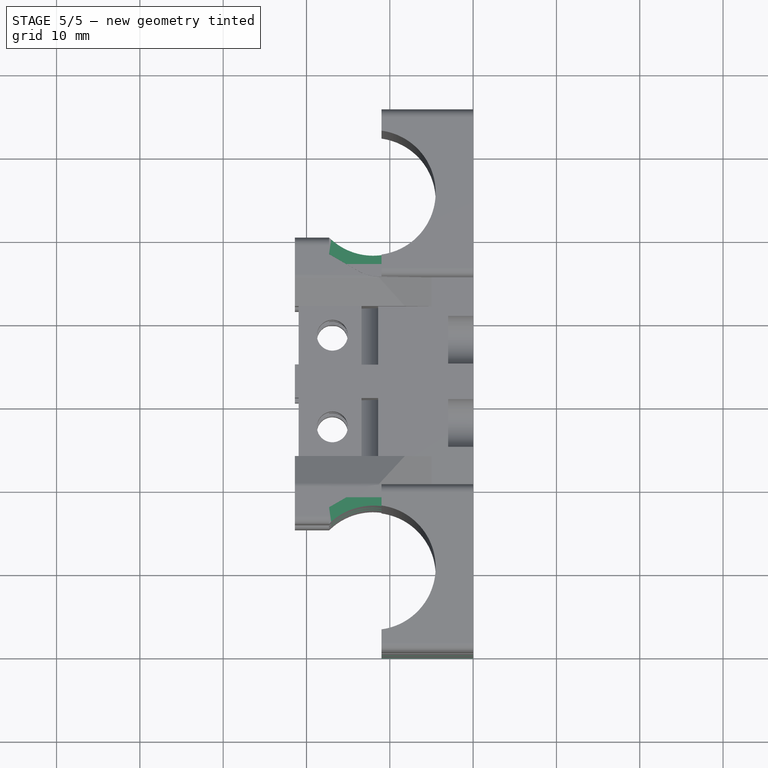
[diagram: stage 5 of 5 — top view after this stage's code; geometry added in this stage tinted green]
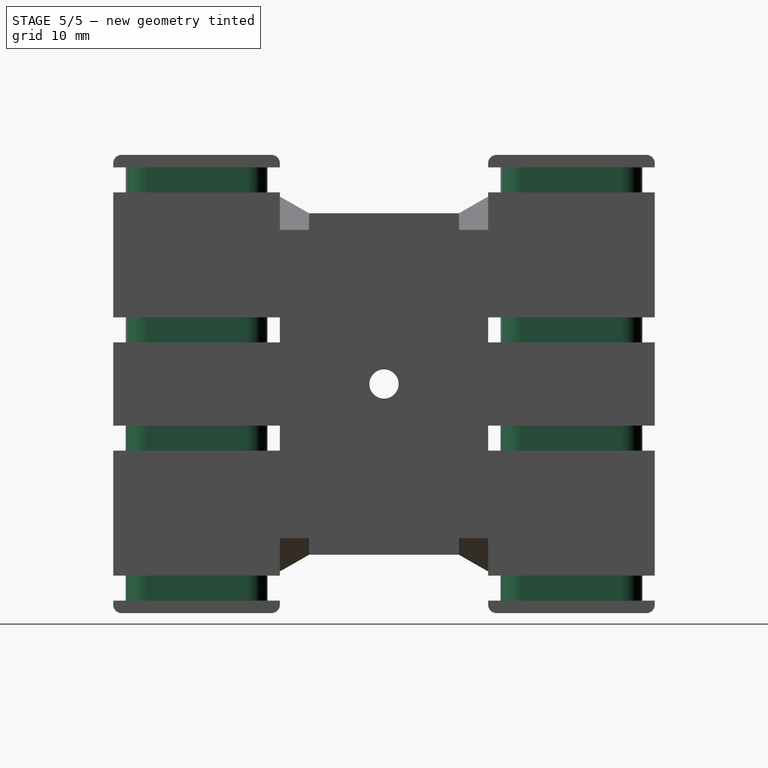
[diagram: stage 5 of 5 — right view after this stage's code; geometry added in this stage tinted green]
FEATURE [PartDesign::LinearPattern] LinearPattern
  BaseFeature = -> Pocket008
  Direction = -> Sketch019 [V_Axis]
  Length = 31
  Occurrences = 2
  Originals = -> [Pocket008]
  Reversed = true
FEATURE [Sketcher::SketchObject] Sketch020
  MapMode = 5
  Placement = pos=(-17.2998,0,0) rot=(0.57735,-0.57735,-0.57735;2.0944rad)
  Support = -> [LinearPattern]
  sketch-geometry (24):
    g0: LineSegment StartX=-52.5 StartY=50.5 StartZ=0 EndX=-12.5 EndY=50.5 EndZ=0
    g1: LineSegment StartX=-12.5 StartY=50.5 StartZ=0 EndX=-12.5 EndY=55 EndZ=0
    g2: LineSegment StartX=-12.5 StartY=55 StartZ=0 EndX=-52.5 EndY=55 EndZ=0
    g3: LineSegment StartX=-52.5 StartY=55 StartZ=0 EndX=-52.5 EndY=50.5 EndZ=0
    g4: LineSegment StartX=-46.5 StartY=35.5 StartZ=0 EndX=-52.5 EndY=35.5 EndZ=0
    g5: LineSegment StartX=-52.5 StartY=35.5 StartZ=0 EndX=-52.5 EndY=32.5 EndZ=0
    g6: LineSegment StartX=-52.5 StartY=32.5 StartZ=0 EndX=-46.5 EndY=32.5 EndZ=0
    g7: LineSegment StartX=-46.5 StartY=32.5 StartZ=0 EndX=-46.5 EndY=35.5 EndZ=0
    g8: LineSegment StartX=-46.5 StartY=22.5 StartZ=0 EndX=-52.5 EndY=22.5 EndZ=0
    g9: LineSegment StartX=-52.5 StartY=22.5 StartZ=0 EndX=-52.5 EndY=19.5 EndZ=0
    g10: LineSegment StartX=-52.5 StartY=19.5 StartZ=0 EndX=-46.5 EndY=19.5 EndZ=0
    g11: LineSegment StartX=-46.5 StartY=19.5 StartZ=0 EndX=-46.5 EndY=22.5 EndZ=0
    g12: LineSegment StartX=-18.5 StartY=35.5 StartZ=0 EndX=-12.5 EndY=35.5 EndZ=0
    g13: LineSegment StartX=-12.5 StartY=35.5 StartZ=0 EndX=-12.5 EndY=32.5 EndZ=0
    g14: LineSegment StartX=-12.5 StartY=32.5 StartZ=0 EndX=-18.5 EndY=32.5 EndZ=0
    g15: LineSegment StartX=-18.5 StartY=32.5 StartZ=0 EndX=-18.5 EndY=35.5 EndZ=0
    g16: LineSegment StartX=-18.5 StartY=22.5 StartZ=0 EndX=-12.5 EndY=22.5 EndZ=0
    g17: LineSegment StartX=-12.5 StartY=22.5 StartZ=0 EndX=-12.5 EndY=19.5 EndZ=0
    g18: LineSegment StartX=-12.5 StartY=19.5 StartZ=0 EndX=-18.5 EndY=19.5 EndZ=0
    g19: LineSegment StartX=-18.5 StartY=19.5 StartZ=0 EndX=-18.5 EndY=22.5 EndZ=0
    g20: LineSegment StartX=-52.5 StartY=4.5 StartZ=0 EndX=-12.5 EndY=4.5 EndZ=0
    g21: LineSegment StartX=-12.5 StartY=4.5 StartZ=0 EndX=-12.5 EndY=0 EndZ=0
    g22: LineSegment StartX=-12.5 StartY=0 StartZ=0 EndX=-52.5 EndY=0 EndZ=0
    g23: LineSegment StartX=-52.5 StartY=0 StartZ=0 EndX=-52.5 EndY=4.5 EndZ=0
  constraints (72):
    c: Coincident(g1,g2)
    c: Coincident(g2,g3)
    c: Horizontal(g0)
    c: Horizontal(g2)
    c: Vertical(g1)
    c: Vertical(g3)
    c: DistanceY(g0) = 50.5
    c: DistanceY(g1,g1) = 4.5
    c: DistanceX(g2,g2) = 40
    c: Coincident(g0,g3)
    c: Coincident(g0,g1)
    c: Coincident(g4,g5)
    c: Coincident(g5,g6)
    c: Coincident(g6,g7)
    c: Coincident(g7,g4)
    c: Horizontal(g4)
    c: Horizontal(g6)
    c: Vertical(g5)
    c: Vertical(g7)
    c: Coincident(g8,g9)
    c: Coincident(g9,g10)
    c: Coincident(g10,g11)
    c: Coincident(g11,g8)
    c: Horizontal(g8)
    c: Horizontal(g10)
    c: Vertical(g9)
    c: Vertical(g11)
    c: Coincident(g12,g13)
    c: Coincident(g13,g14)
    c: Coincident(g14,g15)
    c: Coincident(g15,g12)
    c: Horizontal(g12)
    c: Horizontal(g14)
    c: Vertical(g13)
    c: Vertical(g15)
    c: Coincident(g16,g17)
    c: Coincident(g17,g18)
    c: Coincident(g18,g19)
    c: Coincident(g19,g16)
    c: Horizontal(g16)
    c: Horizontal(g18)
    c: Vertical(g17)
    c: Vertical(g19)
    c: DistanceX(g0) = -12.5
    c: Coincident(g20,g21)
    c: Coincident(g21,g22)
    c: Coincident(g22,g23)
    c: Coincident(g23,g20)
    c: Horizontal(g20)
    c: Horizontal(g22)
    c: Vertical(g21)
    c: Vertical(g23)
    c: PointOnObject(g21,g-1)
    c: PointOnObject(g20,g1)
    c: PointOnObject(g20,g3)
    c: Equal(g3,g23)
    c: PointOnObject(g4,g3)
    c: PointOnObject(g8,g5)
    c: PointOnObject(g12,g1)
    c: PointOnObject(g16,g13)
    c: DistanceY(g5,g5) = 3
    c: DistanceY(g5,g2) = 22.5
    c: DistanceY(g22,g8) = 22.5
    c: Equal(g5,g9)
    c: Equal(g9,g13)
    c: Equal(g13,g17)
    c: PointOnObject(g12,g4)
    c: PointOnObject(g16,g8)
    c: DistanceX(g4,g4) = 6
    c: Equal(g4,g8)
    c: Equal(g8,g12)
    c: Equal(g12,g16)
FEATURE [PartDesign::Pocket] Pocket009
  BaseFeature = -> LinearPattern
  Length = 6.3
  Length2 = 100
  Profile = -> Sketch020
  Type = 0
FEATURE [Sketcher::SketchObject] Sketch021
  MapMode = 5
  Placement = pos=(0,0,0) rot=(0.57735,0.57735,0.57735;2.0944rad)
  Support = -> [Pocket009]
  sketch-geometry (16):
    g0: LineSegment StartX=1.5 StartY=53.5 StartZ=0 EndX=18.5 EndY=53.5 EndZ=0
    g1: LineSegment StartX=18.5 StartY=53.5 StartZ=0 EndX=18.5 EndY=50.5 EndZ=0
    g2: LineSegment StartX=18.5 StartY=50.5 StartZ=0 EndX=1.5 EndY=50.5 EndZ=0
    g3: LineSegment StartX=1.5 StartY=50.5 StartZ=0 EndX=1.5 EndY=53.5 EndZ=0
    g4: LineSegment StartX=1.5 StartY=35.5 StartZ=0 EndX=18.5 EndY=35.5 EndZ=0
    g5: LineSegment StartX=18.5 StartY=35.5 StartZ=0 EndX=18.5 EndY=32.5 EndZ=0
    g6: LineSegment StartX=18.5 StartY=32.5 StartZ=0 EndX=1.5 EndY=32.5 EndZ=0
    g7: LineSegment StartX=1.5 StartY=32.5 StartZ=0 EndX=1.5 EndY=35.5 EndZ=0
    g8: LineSegment StartX=1.5 StartY=22.5 StartZ=0 EndX=18.5 EndY=22.5 EndZ=0
    g9: LineSegment StartX=18.5 StartY=22.5 StartZ=0 EndX=18.5 EndY=19.5 EndZ=0
    g10: LineSegment StartX=18.5 StartY=19.5 StartZ=0 EndX=1.5 EndY=19.5 EndZ=0
    g11: LineSegment StartX=1.5 StartY=19.5 StartZ=0 EndX=1.5 EndY=22.5 EndZ=0
    g12: LineSegment StartX=1.5 StartY=4.5 StartZ=0 EndX=18.5 EndY=4.5 EndZ=0
    g13: LineSegment StartX=18.5 StartY=4.5 StartZ=0 EndX=18.5 EndY=1.5 EndZ=0
    g14: LineSegment StartX=18.5 StartY=1.5 StartZ=0 EndX=1.5 EndY=1.5 EndZ=0
    g15: LineSegment StartX=1.5 StartY=1.5 StartZ=0 EndX=1.5 EndY=4.5 EndZ=0
  constraints (48):
    c: Coincident(g0,g1)
    c: Coincident(g1,g2)
    c: Coincident(g2,g3)
    c: Coincident(g3,g0)
    c: Horizontal(g0)
    c: Horizontal(g2)
    c: Vertical(g1)
    c: Vertical(g3)
    c: Coincident(g4,g5)
    c: Coincident(g5,g6)
    c: Coincident(g6,g7)
    c: Coincident(g7,g4)
    c: Horizontal(g4)
    c: Horizontal(g6)
    c: Vertical(g5)
    c: Vertical(g7)
    c: Coincident(g8,g9)
    c: Coincident(g9,g10)
    c: Coincident(g10,g11)
    c: Coincident(g11,g8)
    c: Horizontal(g8)
    c: Horizontal(g10)
    c: Vertical(g9)
    c: Vertical(g11)
    c: Coincident(g12,g13)
    c: Coincident(g13,g14)
    c: Coincident(g14,g15)
    c: Coincident(g15,g12)
    c: Horizontal(g12)
    c: Horizontal(g14)
    c: Vertical(g13)
    c: Vertical(g15)
    c: Equal(g15,g11)
    c: Equal(g11,g7)
    c: Equal(g7,g3)
    c: Equal(g2,g6)
    c: Equal(g6,g10)
    c: Equal(g10,g14)
    c: DistanceY(g15,g15) = 3
    c: DistanceX(g14,g14) = 17
    c: DistanceX(g14) = 1.5
    c: DistanceY(g14) = 1.5
    c: DistanceY(g14,g8) = 21
    c: DistanceY(g6,g0) = 21
    c: DistanceY(g14,g0) = 52
    c: PointOnObject(g10,g15)
    c: PointOnObject(g6,g11)
    c: PointOnObject(g2,g7)
FEATURE [PartDesign::Pocket] Pocket010
  BaseFeature = -> Pocket009
  Length = 1.5
  Length2 = 100
  Profile = -> Sketch021
  Type = 0
FEATURE [PartDesign::LinearPattern] LinearPattern001
  BaseFeature = -> Pocket010
  Direction = -> Sketch021 [H_Axis]
  Length = 45
  Occurrences = 2
  Originals = -> [Pocket010]
FEATURE [PartDesign::Fillet] Fillet
  Base = -> LinearPattern001 [Edge932,Edge930,Edge926,Edge927,Edge923,Edge924,Edge950,Edge949,Edge840,Edge945,Edge545,Edge856,Edge540,Edge855,Edge849,Edge942]
  BaseFeature = -> LinearPattern001
  Radius = 2.5
FEATURE [PartDesign::Body] Body
  BaseFeature = -> Part__Feature
  Group = -> [BaseFeature,Sketch,Pad,Sketch001,Pad001,Sketch002,Pad002,Sketch003,Pad003,Sketch004,Pad004,Sketch006,Pad005,Sketch007,Pocket,Sketch008,Pocket001,Sketch009,Pocket002,Sketch010,Pocket003,Sketch011,Pocket004,Sketch012,Pad006,Sketch013,Pad007,Sketch014,Pad008,Sketch015,Pad009,Sketch016,Pocket005,Sketch017,Pocket006,Sketch018,Pocket007,Sketch019,Pocket008,LinearPattern,Sketch020,Pocket009,Sketch021,+3 more]
  Origin = -> Origin
  Tip = -> Fillet
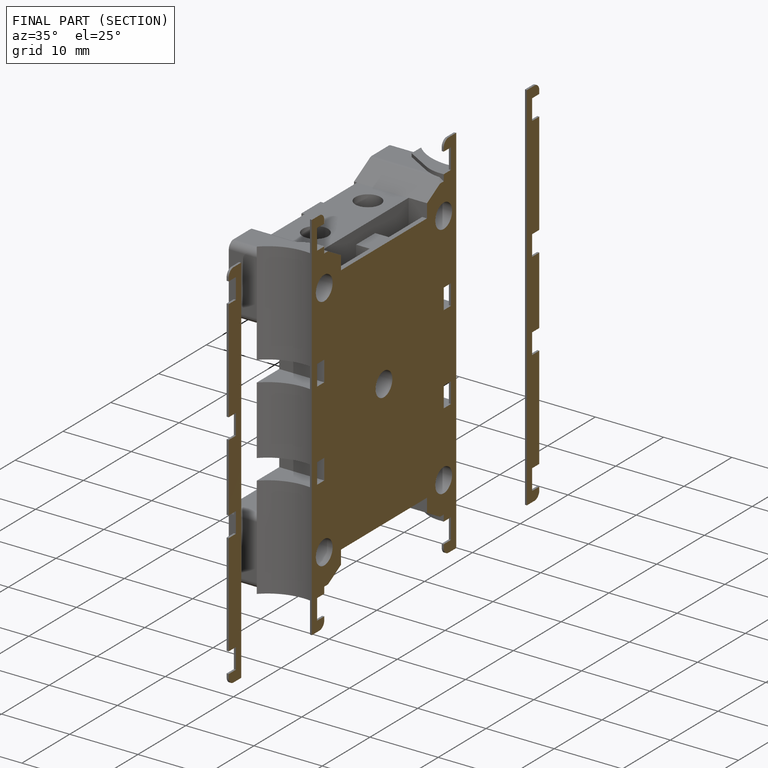
[diagram: finished part — half-section view (interior)]
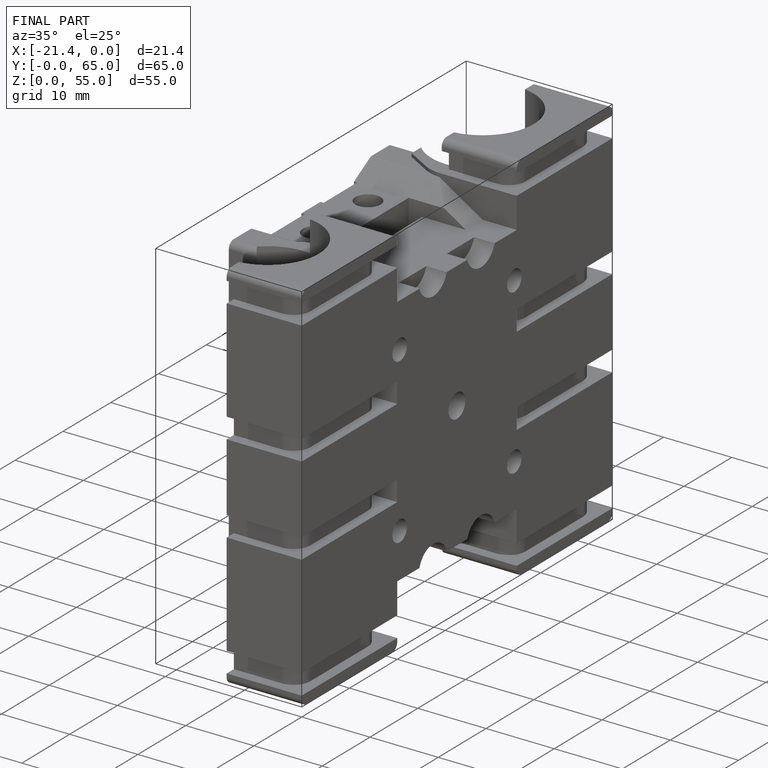
[diagram: finished part — iso view with bounding-box wireframe]
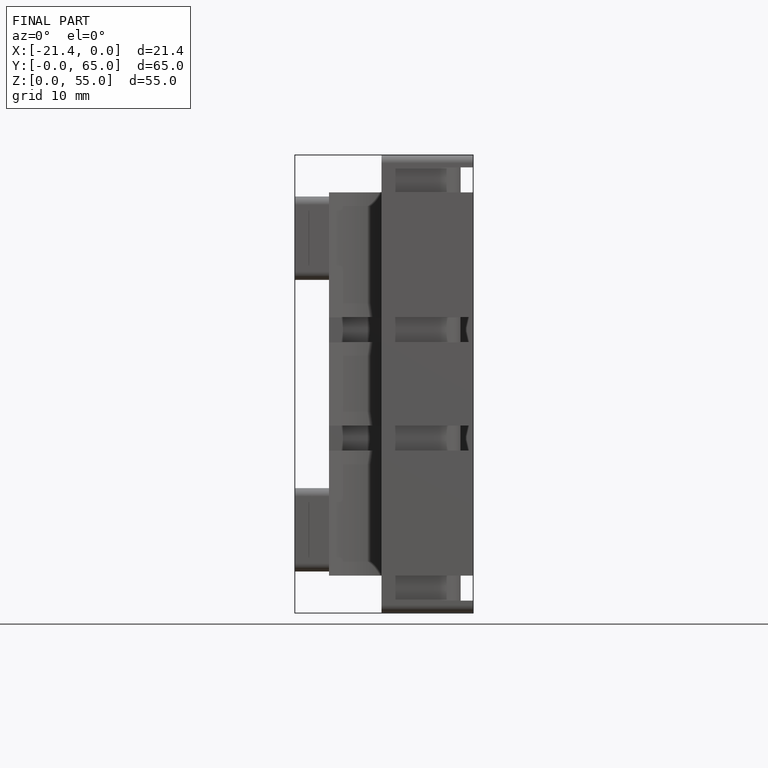
[diagram: finished part — front view with bounding-box wireframe]
